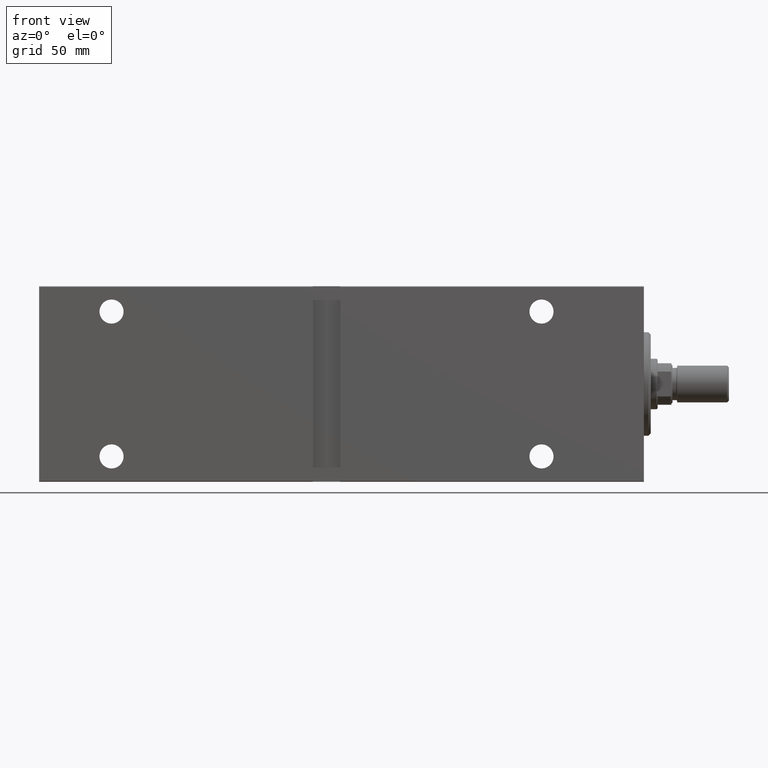
[diagram: clean part render]
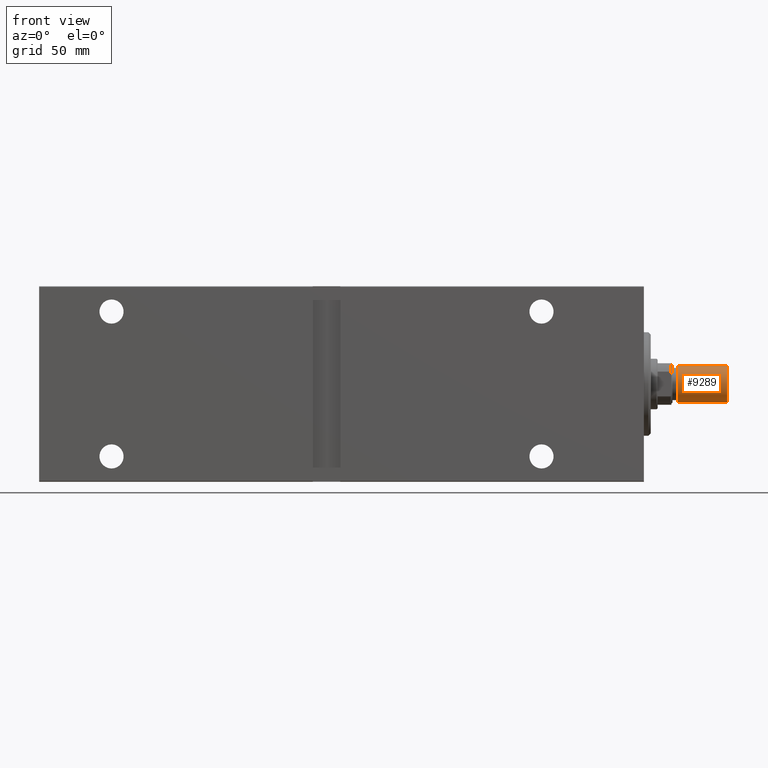
[diagram: same view with one face highlighted and labeled with its STEP entity id]
A machine part, front view. The second image highlights one B-rep face of the part: STEP entity #9289.
In plain terms, the highlighted cylindrical surface (edge-blend (fillet) strip) has radius 8 mm, axis along (1, -0, -0).
Its self-contained STEP definition (entity closure, byte-faithful):
#729 = LINE ( 'NONE', #1384, #1199 ) ;
#1199 = VECTOR ( 'NONE', #21061, 1000.000000000000000 ) ;
#1384 = CARTESIAN_POINT ( 'NONE',  ( 8.000000000000000000, 9.797174393178823685E-16, 22.50000000000000000 ) ) ;
#2243 = AXIS2_PLACEMENT_3D ( 'NONE', #39688, #16271, #6753 ) ;
#4139 = VERTEX_POINT ( 'NONE', #33926 ) ;
#5023 = CIRCLE ( 'NONE', #36057, 8.000000000000000000 ) ;
#5974 = DIRECTION ( 'NONE',  ( -0.000000000000000000, -0.000000000000000000, 1.000000000000000000 ) ) ;
#6391 = EDGE_CURVE ( 'NONE', #29814, #4139, #5023, .T. ) ;
#6753 = DIRECTION ( 'NONE',  ( -1.000000000000000000, 0.000000000000000000, 0.000000000000000000 ) ) ;
#7418 = CARTESIAN_POINT ( 'NONE',  ( 8.000000000000000000, 9.797174393178823685E-16, 0.8000000000000055955 ) ) ;
#7856 = CARTESIAN_POINT ( 'NONE',  ( -8.000000000000000000, 0.000000000000000000, 22.50000000000000000 ) ) ;
#9150 = CARTESIAN_POINT ( 'NONE',  ( -8.000000000000000000, 0.000000000000000000, 0.8000000000000055955 ) ) ;
#9289 = ADVANCED_FACE ( 'NONE', ( #9848 ), #33073, .T. ) ;
#9848 = FACE_OUTER_BOUND ( 'NONE', #13098, .T. ) ;
#10508 = AXIS2_PLACEMENT_3D ( 'NONE', #35820, #5974, #26108 ) ;
#12716 = CARTESIAN_POINT ( 'NONE',  ( 0.000000000000000000, 0.000000000000000000, 22.50000000000000000 ) ) ;
#13098 = EDGE_LOOP ( 'NONE', ( #24961, #39615, #43497, #26718 ) ) ;
#16135 = VECTOR ( 'NONE', #42083, 1000.000000000000000 ) ;
#16271 = DIRECTION ( 'NONE',  ( -0.000000000000000000, -0.000000000000000000, -1.000000000000000000 ) ) ;
#16833 = CIRCLE ( 'NONE', #10508, 8.000000000000000000 ) ;
#16883 = EDGE_CURVE ( 'NONE', #4139, #24401, #729, .T. ) ;
#21061 = DIRECTION ( 'NONE',  ( -0.000000000000000000, -0.000000000000000000, -1.000000000000000000 ) ) ;
#21674 = EDGE_CURVE ( 'NONE', #29814, #30983, #34820, .T. ) ;
#21869 = EDGE_CURVE ( 'NONE', #30983, #24401, #16833, .T. ) ;
#23150 = CARTESIAN_POINT ( 'NONE',  ( -8.000000000000000000, 0.000000000000000000, 22.50000000000000000 ) ) ;
#24401 = VERTEX_POINT ( 'NONE', #7418 ) ;
#24961 = ORIENTED_EDGE ( 'NONE', *, *, #16883, .F. ) ;
#26108 = DIRECTION ( 'NONE',  ( 1.000000000000000000, 0.000000000000000000, 0.000000000000000000 ) ) ;
#26203 = DIRECTION ( 'NONE',  ( 1.000000000000000000, 0.000000000000000000, 0.000000000000000000 ) ) ;
#26718 = ORIENTED_EDGE ( 'NONE', *, *, #21869, .T. ) ;
#29814 = VERTEX_POINT ( 'NONE', #23150 ) ;
#30983 = VERTEX_POINT ( 'NONE', #9150 ) ;
#32405 = DIRECTION ( 'NONE',  ( 0.000000000000000000, 0.000000000000000000, 1.000000000000000000 ) ) ;
#33073 = CYLINDRICAL_SURFACE ( 'NONE', #2243, 8.000000000000000000 ) ;
#33926 = CARTESIAN_POINT ( 'NONE',  ( 8.000000000000000000, 9.797174393178823685E-16, 22.50000000000000000 ) ) ;
#34820 = LINE ( 'NONE', #7856, #16135 ) ;
#35820 = CARTESIAN_POINT ( 'NONE',  ( 0.000000000000000000, 0.000000000000000000, 0.8000000000000055955 ) ) ;
#36057 = AXIS2_PLACEMENT_3D ( 'NONE', #12716, #32405, #26203 ) ;
#39615 = ORIENTED_EDGE ( 'NONE', *, *, #6391, .F. ) ;
#39688 = CARTESIAN_POINT ( 'NONE',  ( 0.000000000000000000, 0.000000000000000000, 22.50000000000000000 ) ) ;
#42083 = DIRECTION ( 'NONE',  ( -0.000000000000000000, -0.000000000000000000, -1.000000000000000000 ) ) ;
#43497 = ORIENTED_EDGE ( 'NONE', *, *, #21674, .T. ) ;